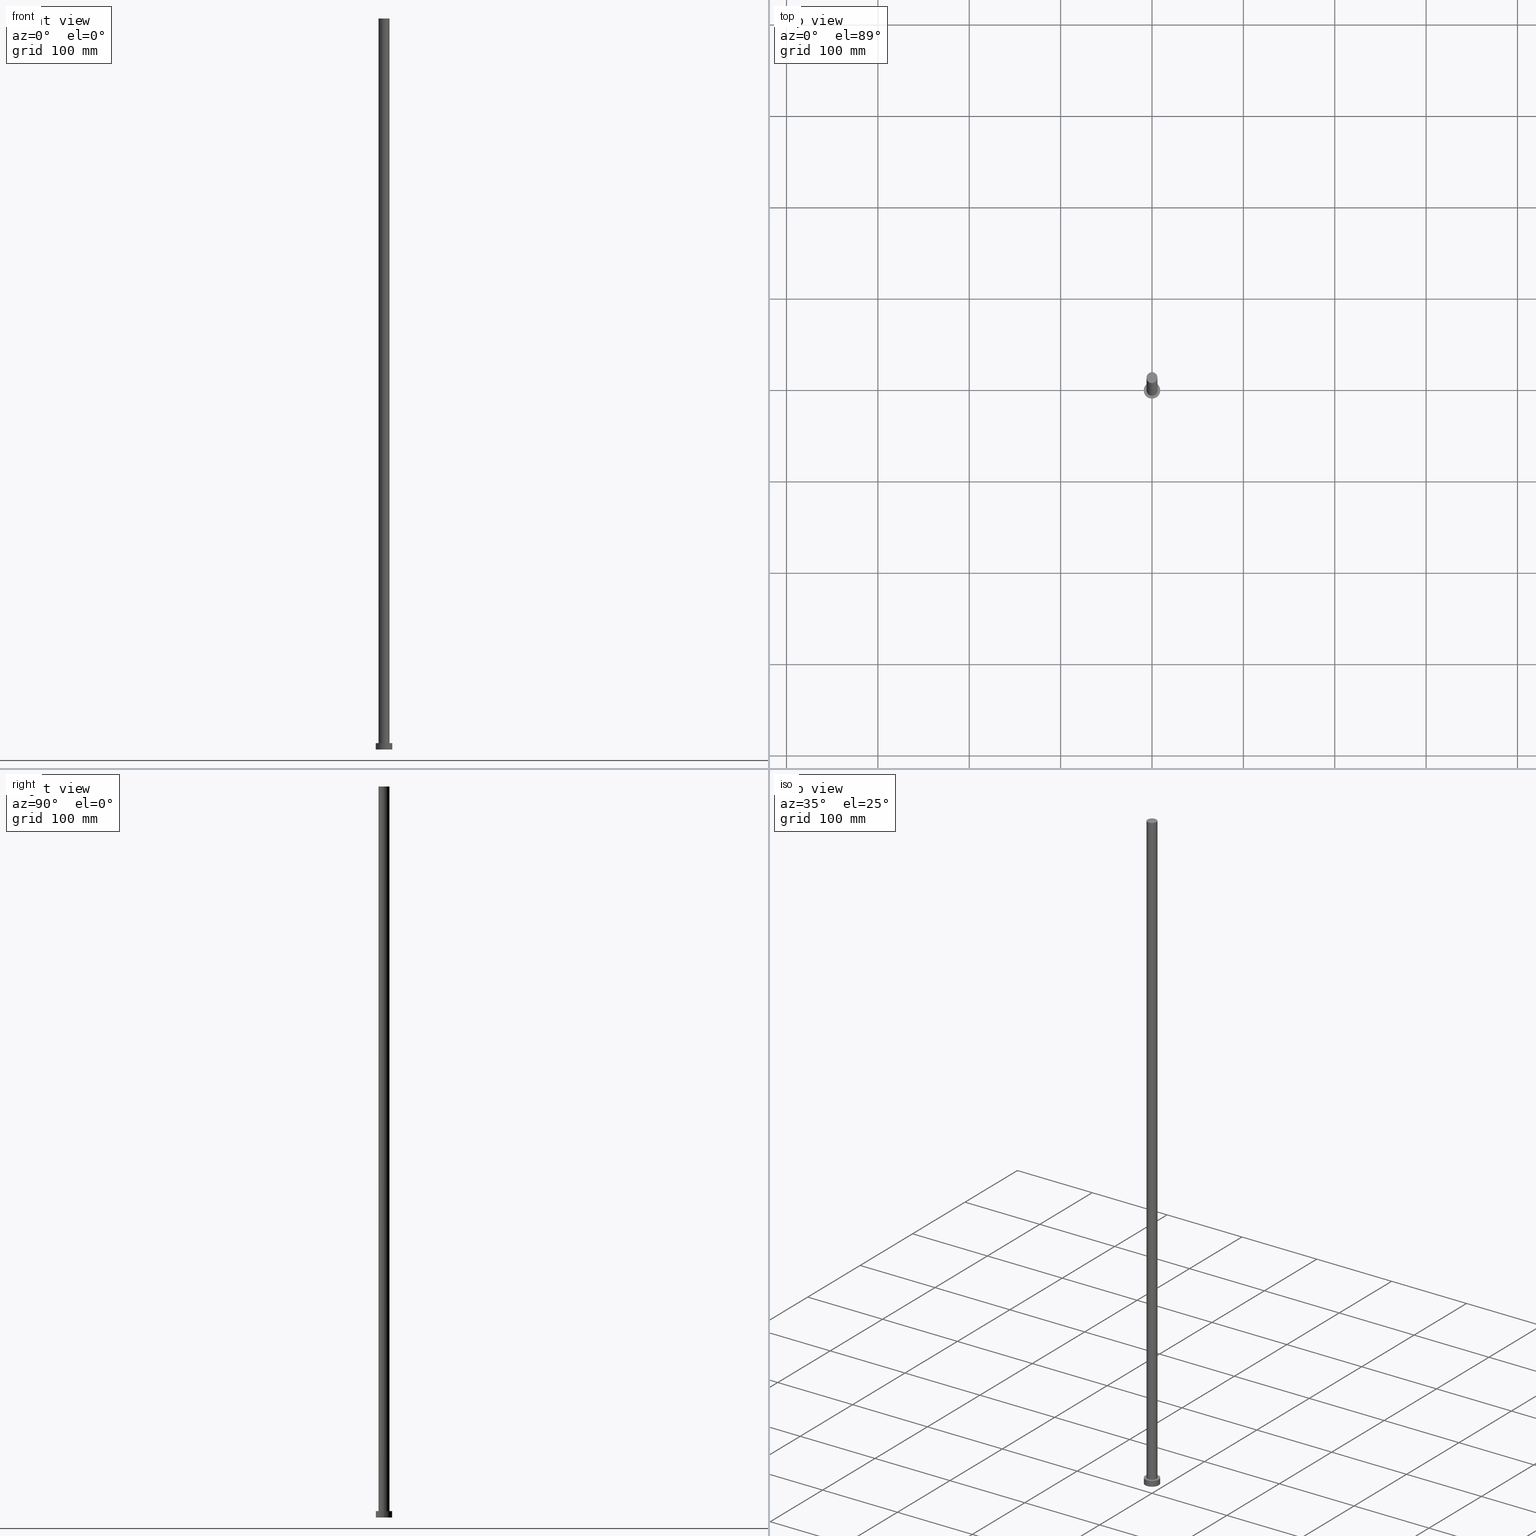
[diagram: canonical four-view strip — front | top / right | iso, engineering-drawing reading convention]
A machine part, canonical four-view strip (front | top / right | iso — engineering-drawing reading convention). The complete STEP part file that produces these views, byte-faithful:
ISO-10303-21;
HEADER;
FILE_DESCRIPTION (( 'STEP AP203' ),
    '1' );
FILE_NAME ('87c6.STEP',
    '2026-02-06T12:36:55',
    ( '' ),
    ( '' ),
    'SwSTEP 2.0',
    'SolidWorks 2019',
    '' );
FILE_SCHEMA (( 'CONFIG_CONTROL_DESIGN' ));
ENDSEC;

DATA;
#1 = EDGE_CURVE ( 'NONE', #83, #47, #236, .T. ) ;
#2 = AXIS2_PLACEMENT_3D ( 'NONE', #19, #146, #206 ) ;
#3 = CARTESIAN_POINT ( 'NONE',  ( 0.000000000000000000, 0.000000000000000000, 0.000000000000000000 ) ) ;
#4 = APPLICATION_PROTOCOL_DEFINITION ( 'international standard', 'config_control_design', 1994, #253 ) ;
#5 = ADVANCED_FACE ( 'NONE', ( #30, #10 ), #183, .T. ) ;
#6 = VECTOR ( 'NONE', #247, 1000.000000000000000 ) ;
#7 = DIRECTION ( 'NONE',  ( -0.000000000000000000, -0.000000000000000000, -1.000000000000000000 ) ) ;
#8 = LOCAL_TIME ( 13, 36, 55.00000000000000000, #89 ) ;
#9 = EDGE_CURVE ( 'NONE', #101, #223, #202, .T. ) ;
#10 = FACE_OUTER_BOUND ( 'NONE', #220, .T. ) ;
#11 = ORIENTED_EDGE ( 'NONE', *, *, #9, .T. ) ;
#12 = AXIS2_PLACEMENT_3D ( 'NONE', #3, #156, #161 ) ;
#13 = DIRECTION ( 'NONE',  ( 1.000000000000000000, 0.000000000000000000, -0.000000000000000000 ) ) ;
#14 = DIRECTION ( 'NONE',  ( 0.000000000000000000, 0.000000000000000000, 1.000000000000000000 ) ) ;
#15 = PERSON ( 'NEUR�EN�', 'NEUR�EN�', 'NEUR�EN�', ('NEUR�EN�'), ('NEUR�EN�'), ('NEUR�EN�') ) ;
#16 = CARTESIAN_POINT ( 'NONE',  ( 0.000000000000000000, 0.000000000000000000, 800.0000000000000000 ) ) ;
#17 = CIRCLE ( 'NONE', #225, 9.000000000000000000 ) ;
#18 = CC_DESIGN_APPROVAL ( #237, ( #157 ) ) ;
#19 = CARTESIAN_POINT ( 'NONE',  ( 0.000000000000000000, 0.000000000000000000, 7.000000000000000000 ) ) ;
#20 = DIRECTION ( 'NONE',  ( -0.000000000000000000, -0.000000000000000000, -1.000000000000000000 ) ) ;
#21 = CARTESIAN_POINT ( 'NONE',  ( 0.000000000000000000, 0.000000000000000000, 0.000000000000000000 ) ) ;
#22 = AXIS2_PLACEMENT_3D ( 'NONE', #21, #229, #86 ) ;
#23 = LOCAL_TIME ( 13, 36, 55.00000000000000000, #178 ) ;
#24 = MANIFOLD_SOLID_BREP ( 'P�idat vysunut�m3', #123 ) ;
#25 = MECHANICAL_CONTEXT ( 'NONE', #253, 'mechanical' ) ;
#26 = ORIENTED_EDGE ( 'NONE', *, *, #27, .F. ) ;
#27 = EDGE_CURVE ( 'NONE', #47, #83, #177, .T. ) ;
#28 = CARTESIAN_POINT ( 'NONE',  ( 0.000000000000000000, 0.000000000000000000, 7.000000000000000000 ) ) ;
#29 = APPROVAL_DATE_TIME ( #218, #158 ) ;
#30 = FACE_BOUND ( 'NONE', #31, .T. ) ;
#31 = EDGE_LOOP ( 'NONE', ( #238, #26 ) ) ;
#32 = APPROVAL_PERSON_ORGANIZATION ( #98, #158, #200 ) ;
#33 = CARTESIAN_POINT ( 'NONE',  ( 6.000000000000000888, 7.347880794884120722E-16, 7.000000000000000000 ) ) ;
#34 = EDGE_CURVE ( 'NONE', #67, #203, #144, .T. ) ;
#35 = CARTESIAN_POINT ( 'NONE',  ( -6.000000000000000888, 0.000000000000000000, 800.0000000000000000 ) ) ;
#36 = CARTESIAN_POINT ( 'NONE',  ( 0.000000000000000000, 0.000000000000000000, 800.0000000000000000 ) ) ;
#37 = SECURITY_CLASSIFICATION_LEVEL ( 'unclassified' ) ;
#38 = ADVANCED_FACE ( 'NONE', ( #109 ), #107, .T. ) ;
#39 = DIRECTION ( 'NONE',  ( -0.000000000000000000, -0.000000000000000000, -1.000000000000000000 ) ) ;
#40 = CARTESIAN_POINT ( 'NONE',  ( 0.000000000000000000, 0.000000000000000000, 800.0000000000000000 ) ) ;
#41 = VECTOR ( 'NONE', #20, 1000.000000000000000 ) ;
#42 =( NAMED_UNIT ( * ) PLANE_ANGLE_UNIT ( ) SI_UNIT ( $, .RADIAN. ) );
#43 = CYLINDRICAL_SURFACE ( 'NONE', #136, 9.000000000000000000 ) ;
#44 = DIRECTION ( 'NONE',  ( 1.000000000000000000, 0.000000000000000000, -0.000000000000000000 ) ) ;
#45 = EDGE_CURVE ( 'NONE', #223, #101, #135, .T. ) ;
#46 = AXIS2_PLACEMENT_3D ( 'NONE', #40, #112, #137 ) ;
#47 = VERTEX_POINT ( 'NONE', #33 ) ;
#48 = DESIGN_CONTEXT ( 'detailed design', #87, 'design' ) ;
#49 = CARTESIAN_POINT ( 'NONE',  ( 0.000000000000000000, 0.000000000000000000, 7.000000000000000000 ) ) ;
#50 = ORIENTED_EDGE ( 'NONE', *, *, #45, .F. ) ;
#51 =( NAMED_UNIT ( * ) SI_UNIT ( $, .STERADIAN. ) SOLID_ANGLE_UNIT ( ) );
#52 = ADVANCED_FACE ( 'NONE', ( #186 ), #188, .T. ) ;
#53 = VECTOR ( 'NONE', #195, 1000.000000000000000 ) ;
#54 = DIRECTION ( 'NONE',  ( 0.000000000000000000, 0.000000000000000000, 1.000000000000000000 ) ) ;
#55 = DIRECTION ( 'NONE',  ( 1.000000000000000000, 0.000000000000000000, 0.000000000000000000 ) ) ;
#56 = CC_DESIGN_PERSON_AND_ORGANIZATION_ASSIGNMENT ( #250, #209, ( #95 ) ) ;
#57 = CARTESIAN_POINT ( 'NONE',  ( 6.000000000000000888, 7.347880794884120722E-16, 800.0000000000000000 ) ) ;
#58 = APPROVAL_DATE_TIME ( #230, #140 ) ;
#59 = CARTESIAN_POINT ( 'NONE',  ( 0.000000000000000000, 0.000000000000000000, 7.000000000000000000 ) ) ;
#60 = CIRCLE ( 'NONE', #192, 6.000000000000000888 ) ;
#61 = ORIENTED_EDGE ( 'NONE', *, *, #77, .T. ) ;
#62 = CARTESIAN_POINT ( 'NONE',  ( 0.000000000000000000, 0.000000000000000000, 7.000000000000000000 ) ) ;
#63 = PERSON_AND_ORGANIZATION_ROLE ( 'design_owner' ) ;
#64 = APPROVAL_STATUS ( 'not_yet_approved' ) ;
#65 = LOCAL_TIME ( 13, 36, 55.00000000000000000, #197 ) ;
#66 = CALENDAR_DATE ( 2026, 6, 2 ) ;
#67 = VERTEX_POINT ( 'NONE', #165 ) ;
#68 = ORIENTED_EDGE ( 'NONE', *, *, #77, .F. ) ;
#69 = DIRECTION ( 'NONE',  ( 0.000000000000000000, 0.000000000000000000, 1.000000000000000000 ) ) ;
#70 = EDGE_LOOP ( 'NONE', ( #239, #68, #219, #160 ) ) ;
#71 = AXIS2_PLACEMENT_3D ( 'NONE', #36, #54, #74 ) ;
#72 = CARTESIAN_POINT ( 'NONE',  ( 0.000000000000000000, 0.000000000000000000, 800.0000000000000000 ) ) ;
#73 = CARTESIAN_POINT ( 'NONE',  ( -9.000000000000000000, 0.000000000000000000, 7.000000000000000000 ) ) ;
#74 = DIRECTION ( 'NONE',  ( 1.000000000000000000, 0.000000000000000000, -0.000000000000000000 ) ) ;
#75 = DIRECTION ( 'NONE',  ( 1.000000000000000000, 0.000000000000000000, 0.000000000000000000 ) ) ;
#76 = APPROVAL_STATUS ( 'not_yet_approved' ) ;
#77 = EDGE_CURVE ( 'NONE', #203, #67, #60, .T. ) ;
#78 = PERSON_AND_ORGANIZATION ( #15, #152 ) ;
#79 = EDGE_CURVE ( 'NONE', #138, #145, #216, .T. ) ;
#80 = CALENDAR_DATE ( 2026, 6, 2 ) ;
#81 = CARTESIAN_POINT ( 'NONE',  ( 9.000000000000000000, 1.102182119232617714E-15, 0.000000000000000000 ) ) ;
#82 = ADVANCED_FACE ( 'NONE', ( #111 ), #226, .T. ) ;
#83 = VERTEX_POINT ( 'NONE', #127 ) ;
#84 = CARTESIAN_POINT ( 'NONE',  ( -9.000000000000000000, 0.000000000000000000, 7.000000000000000000 ) ) ;
#85 = ORIENTED_EDGE ( 'NONE', *, *, #201, .T. ) ;
#86 = DIRECTION ( 'NONE',  ( 1.000000000000000000, 0.000000000000000000, 0.000000000000000000 ) ) ;
#87 = APPLICATION_CONTEXT ( 'configuration controlled 3d designs of mechanical parts and assemblies' ) ;
#88 = DIRECTION ( 'NONE',  ( -1.000000000000000000, 0.000000000000000000, 0.000000000000000000 ) ) ;
#89 = COORDINATED_UNIVERSAL_TIME_OFFSET ( 1, 0, .AHEAD. ) ;
#90 = DIRECTION ( 'NONE',  ( 0.000000000000000000, 0.000000000000000000, 1.000000000000000000 ) ) ;
#91 = CARTESIAN_POINT ( 'NONE',  ( -6.000000000000000888, 0.000000000000000000, 800.0000000000000000 ) ) ;
#92 = AXIS2_PLACEMENT_3D ( 'NONE', #59, #227, #88 ) ;
#93 = ADVANCED_BREP_SHAPE_REPRESENTATION ( '87c6', ( #24, #12 ), #182 ) ;
#94 = EDGE_CURVE ( 'NONE', #145, #138, #17, .T. ) ;
#95 = PRODUCT_DEFINITION_FORMATION_WITH_SPECIFIED_SOURCE ( 'LIBOVOLN�', '', #133, .NOT_KNOWN. ) ;
#96 = CC_DESIGN_PERSON_AND_ORGANIZATION_ASSIGNMENT ( #254, #246, ( #95 ) ) ;
#97 = PLANE ( 'NONE',  #205 ) ;
#98 = PERSON_AND_ORGANIZATION ( #15, #152 ) ;
#99 = PERSON_AND_ORGANIZATION ( #15, #152 ) ;
#100 = VECTOR ( 'NONE', #39, 1000.000000000000000 ) ;
#101 = VERTEX_POINT ( 'NONE', #189 ) ;
#102 = EDGE_LOOP ( 'NONE', ( #142, #50 ) ) ;
#103 = PERSON_AND_ORGANIZATION ( #15, #152 ) ;
#104 = DIRECTION ( 'NONE',  ( 0.000000000000000000, 0.000000000000000000, 1.000000000000000000 ) ) ;
#105 = ORIENTED_EDGE ( 'NONE', *, *, #34, .F. ) ;
#106 = CARTESIAN_POINT ( 'NONE',  ( 0.000000000000000000, 0.000000000000000000, 0.000000000000000000 ) ) ;
#107 = CYLINDRICAL_SURFACE ( 'NONE', #92, 9.000000000000000000 ) ;
#108 = AXIS2_PLACEMENT_3D ( 'NONE', #190, #151, #185 ) ;
#109 = FACE_OUTER_BOUND ( 'NONE', #124, .T. ) ;
#110 = SHAPE_DEFINITION_REPRESENTATION ( #255, #93 ) ;
#111 = FACE_OUTER_BOUND ( 'NONE', #70, .T. ) ;
#112 = DIRECTION ( 'NONE',  ( -0.000000000000000000, -0.000000000000000000, -1.000000000000000000 ) ) ;
#113 = UNCERTAINTY_MEASURE_WITH_UNIT (LENGTH_MEASURE( 1.000000000000000082E-05 ), #233, 'distance_accuracy_value', 'NONE');
#114 = AXIS2_PLACEMENT_3D ( 'NONE', #16, #212, #168 ) ;
#115 = DATE_TIME_ROLE ( 'classification_date' ) ;
#116 = LOCAL_TIME ( 13, 36, 55.00000000000000000, #172 ) ;
#117 = CC_DESIGN_PERSON_AND_ORGANIZATION_ASSIGNMENT ( #232, #63, ( #133 ) ) ;
#118 = LINE ( 'NONE', #84, #53 ) ;
#119 = CARTESIAN_POINT ( 'NONE',  ( 0.000000000000000000, 0.000000000000000000, 0.000000000000000000 ) ) ;
#120 = CC_DESIGN_DATE_AND_TIME_ASSIGNMENT ( #176, #115, ( #157 ) ) ;
#121 = ORIENTED_EDGE ( 'NONE', *, *, #45, .T. ) ;
#122 = DIRECTION ( 'NONE',  ( 0.000000000000000000, 0.000000000000000000, 1.000000000000000000 ) ) ;
#123 = CLOSED_SHELL ( 'NONE', ( #207, #215, #38, #5, #252, #82, #52 ) ) ;
#124 = EDGE_LOOP ( 'NONE', ( #204, #224, #162, #11 ) ) ;
#125 = CC_DESIGN_APPROVAL ( #140, ( #95 ) ) ;
#126 = LINE ( 'NONE', #35, #6 ) ;
#127 = CARTESIAN_POINT ( 'NONE',  ( -6.000000000000000888, 0.000000000000000000, 7.000000000000000000 ) ) ;
#128 = AXIS2_PLACEMENT_3D ( 'NONE', #106, #129, #131 ) ;
#129 = DIRECTION ( 'NONE',  ( 0.000000000000000000, 0.000000000000000000, 1.000000000000000000 ) ) ;
#130 = EDGE_CURVE ( 'NONE', #203, #83, #126, .T. ) ;
#131 = DIRECTION ( 'NONE',  ( 1.000000000000000000, 0.000000000000000000, 0.000000000000000000 ) ) ;
#132 = PERSON_AND_ORGANIZATION_ROLE ( 'classification_officer' ) ;
#133 = PRODUCT ( '87c6', '87c6', '', ( #25 ) ) ;
#134 = DIRECTION ( 'NONE',  ( -1.000000000000000000, 0.000000000000000000, 0.000000000000000000 ) ) ;
#135 = CIRCLE ( 'NONE', #22, 9.000000000000000000 ) ;
#136 = AXIS2_PLACEMENT_3D ( 'NONE', #62, #7, #134 ) ;
#137 = DIRECTION ( 'NONE',  ( -1.000000000000000000, 0.000000000000000000, 0.000000000000000000 ) ) ;
#138 = VERTEX_POINT ( 'NONE', #73 ) ;
#139 = DATE_AND_TIME ( #66, #65 ) ;
#140 = APPROVAL ( #191, 'NEUR�EN�' ) ;
#141 = ORIENTED_EDGE ( 'NONE', *, *, #94, .T. ) ;
#142 = ORIENTED_EDGE ( 'NONE', *, *, #9, .F. ) ;
#143 = EDGE_LOOP ( 'NONE', ( #105, #85, #184, #154 ) ) ;
#144 = CIRCLE ( 'NONE', #251, 6.000000000000000888 ) ;
#145 = VERTEX_POINT ( 'NONE', #147 ) ;
#146 = DIRECTION ( 'NONE',  ( 0.000000000000000000, 0.000000000000000000, 1.000000000000000000 ) ) ;
#147 = CARTESIAN_POINT ( 'NONE',  ( 9.000000000000000000, 1.102182119232617714E-15, 7.000000000000000000 ) ) ;
#148 = APPROVAL_DATE_TIME ( #211, #237 ) ;
#149 = LINE ( 'NONE', #208, #41 ) ;
#150 = APPROVAL_PERSON_ORGANIZATION ( #174, #237, #213 ) ;
#151 = DIRECTION ( 'NONE',  ( 0.000000000000000000, 0.000000000000000000, 1.000000000000000000 ) ) ;
#152 = ORGANIZATION ( 'NEUR�EN�', 'NEUR�EN�', '' ) ;
#153 = CALENDAR_DATE ( 2026, 6, 2 ) ;
#154 = ORIENTED_EDGE ( 'NONE', *, *, #130, .F. ) ;
#155 = PRODUCT_DEFINITION ( 'NEZN�M�', '', #95, #48 ) ;
#156 = DIRECTION ( 'NONE',  ( 0.000000000000000000, 0.000000000000000000, 1.000000000000000000 ) ) ;
#157 = SECURITY_CLASSIFICATION ( '', '', #37 ) ;
#158 = APPROVAL ( #64, 'NEUR�EN�' ) ;
#159 = CC_DESIGN_SECURITY_CLASSIFICATION ( #157, ( #95 ) ) ;
#160 = ORIENTED_EDGE ( 'NONE', *, *, #1, .T. ) ;
#161 = DIRECTION ( 'NONE',  ( 1.000000000000000000, 0.000000000000000000, 0.000000000000000000 ) ) ;
#162 = ORIENTED_EDGE ( 'NONE', *, *, #221, .T. ) ;
#163 = ORIENTED_EDGE ( 'NONE', *, *, #34, .T. ) ;
#164 = EDGE_CURVE ( 'NONE', #145, #223, #149, .T. ) ;
#165 = CARTESIAN_POINT ( 'NONE',  ( 6.000000000000000888, 7.347880794884120722E-16, 800.0000000000000000 ) ) ;
#166 = CARTESIAN_POINT ( 'NONE',  ( 0.000000000000000000, 0.000000000000000000, 7.000000000000000000 ) ) ;
#167 = CALENDAR_DATE ( 2026, 6, 2 ) ;
#168 = DIRECTION ( 'NONE',  ( -1.000000000000000000, 0.000000000000000000, 0.000000000000000000 ) ) ;
#169 = APPROVAL_ROLE ( '' ) ;
#170 = CC_DESIGN_PERSON_AND_ORGANIZATION_ASSIGNMENT ( #78, #132, ( #157 ) ) ;
#171 = FACE_OUTER_BOUND ( 'NONE', #143, .T. ) ;
#172 = COORDINATED_UNIVERSAL_TIME_OFFSET ( 1, 0, .AHEAD. ) ;
#173 = AXIS2_PLACEMENT_3D ( 'NONE', #49, #104, #13 ) ;
#174 = PERSON_AND_ORGANIZATION ( #15, #152 ) ;
#175 = CC_DESIGN_APPROVAL ( #158, ( #155 ) ) ;
#176 = DATE_AND_TIME ( #248, #193 ) ;
#177 = CIRCLE ( 'NONE', #108, 6.000000000000000888 ) ;
#178 = COORDINATED_UNIVERSAL_TIME_OFFSET ( 1, 0, .AHEAD. ) ;
#179 = ORIENTED_EDGE ( 'NONE', *, *, #164, .T. ) ;
#180 = DIRECTION ( 'NONE',  ( 1.000000000000000000, 0.000000000000000000, 0.000000000000000000 ) ) ;
#181 = FACE_OUTER_BOUND ( 'NONE', #242, .T. ) ;
#182 =( GEOMETRIC_REPRESENTATION_CONTEXT ( 3 ) GLOBAL_UNCERTAINTY_ASSIGNED_CONTEXT ( ( #113 ) ) GLOBAL_UNIT_ASSIGNED_CONTEXT ( ( #233, #42, #51 ) ) REPRESENTATION_CONTEXT ( 'NONE', 'WORKASPACE' ) );
#183 = PLANE ( 'NONE',  #173 ) ;
#184 = ORIENTED_EDGE ( 'NONE', *, *, #27, .T. ) ;
#185 = DIRECTION ( 'NONE',  ( 1.000000000000000000, 0.000000000000000000, 0.000000000000000000 ) ) ;
#186 = FACE_OUTER_BOUND ( 'NONE', #240, .T. ) ;
#187 = CC_DESIGN_DATE_AND_TIME_ASSIGNMENT ( #139, #222, ( #155 ) ) ;
#188 = PLANE ( 'NONE',  #71 ) ;
#189 = CARTESIAN_POINT ( 'NONE',  ( -9.000000000000000000, 0.000000000000000000, 0.000000000000000000 ) ) ;
#190 = CARTESIAN_POINT ( 'NONE',  ( 0.000000000000000000, 0.000000000000000000, 7.000000000000000000 ) ) ;
#191 = APPROVAL_STATUS ( 'not_yet_approved' ) ;
#192 = AXIS2_PLACEMENT_3D ( 'NONE', #244, #90, #55 ) ;
#193 = LOCAL_TIME ( 13, 36, 55.00000000000000000, #214 ) ;
#194 = PRODUCT_RELATED_PRODUCT_CATEGORY ( 'detail', '', ( #133 ) ) ;
#195 = DIRECTION ( 'NONE',  ( -0.000000000000000000, -0.000000000000000000, -1.000000000000000000 ) ) ;
#196 = APPLICATION_PROTOCOL_DEFINITION ( 'international standard', 'config_control_design', 1994, #87 ) ;
#197 = COORDINATED_UNIVERSAL_TIME_OFFSET ( 1, 0, .AHEAD. ) ;
#198 = ORIENTED_EDGE ( 'NONE', *, *, #221, .F. ) ;
#199 = ORIENTED_EDGE ( 'NONE', *, *, #94, .F. ) ;
#200 = APPROVAL_ROLE ( '' ) ;
#201 = EDGE_CURVE ( 'NONE', #67, #47, #210, .T. ) ;
#202 = CIRCLE ( 'NONE', #128, 9.000000000000000000 ) ;
#203 = VERTEX_POINT ( 'NONE', #91 ) ;
#204 = ORIENTED_EDGE ( 'NONE', *, *, #164, .F. ) ;
#205 = AXIS2_PLACEMENT_3D ( 'NONE', #119, #69, #44 ) ;
#206 = DIRECTION ( 'NONE',  ( 1.000000000000000000, 0.000000000000000000, 0.000000000000000000 ) ) ;
#207 = ADVANCED_FACE ( 'NONE', ( #171 ), #249, .T. ) ;
#208 = CARTESIAN_POINT ( 'NONE',  ( 9.000000000000000000, 1.102182119232617714E-15, 7.000000000000000000 ) ) ;
#209 = PERSON_AND_ORGANIZATION_ROLE ( 'design_supplier' ) ;
#210 = LINE ( 'NONE', #57, #100 ) ;
#211 = DATE_AND_TIME ( #167, #8 ) ;
#212 = DIRECTION ( 'NONE',  ( -0.000000000000000000, -0.000000000000000000, -1.000000000000000000 ) ) ;
#213 = APPROVAL_ROLE ( '' ) ;
#214 = COORDINATED_UNIVERSAL_TIME_OFFSET ( 1, 0, .AHEAD. ) ;
#215 = ADVANCED_FACE ( 'NONE', ( #181 ), #43, .T. ) ;
#216 = CIRCLE ( 'NONE', #2, 9.000000000000000000 ) ;
#217 = AXIS2_PLACEMENT_3D ( 'NONE', #28, #122, #180 ) ;
#218 = DATE_AND_TIME ( #80, #23 ) ;
#219 = ORIENTED_EDGE ( 'NONE', *, *, #130, .T. ) ;
#220 = EDGE_LOOP ( 'NONE', ( #243, #141 ) ) ;
#221 = EDGE_CURVE ( 'NONE', #138, #101, #118, .T. ) ;
#222 = DATE_TIME_ROLE ( 'creation_date' ) ;
#223 = VERTEX_POINT ( 'NONE', #81 ) ;
#224 = ORIENTED_EDGE ( 'NONE', *, *, #79, .F. ) ;
#225 = AXIS2_PLACEMENT_3D ( 'NONE', #166, #245, #75 ) ;
#226 = CYLINDRICAL_SURFACE ( 'NONE', #114, 6.000000000000000888 ) ;
#227 = DIRECTION ( 'NONE',  ( -0.000000000000000000, -0.000000000000000000, -1.000000000000000000 ) ) ;
#228 = DIRECTION ( 'NONE',  ( 1.000000000000000000, 0.000000000000000000, 0.000000000000000000 ) ) ;
#229 = DIRECTION ( 'NONE',  ( 0.000000000000000000, 0.000000000000000000, 1.000000000000000000 ) ) ;
#230 = DATE_AND_TIME ( #153, #116 ) ;
#231 = CC_DESIGN_PERSON_AND_ORGANIZATION_ASSIGNMENT ( #99, #235, ( #155 ) ) ;
#232 = PERSON_AND_ORGANIZATION ( #15, #152 ) ;
#233 =( LENGTH_UNIT ( ) NAMED_UNIT ( * ) SI_UNIT ( .MILLI., .METRE. ) );
#234 = APPROVAL_PERSON_ORGANIZATION ( #103, #140, #169 ) ;
#235 = PERSON_AND_ORGANIZATION_ROLE ( 'creator' ) ;
#236 = CIRCLE ( 'NONE', #217, 6.000000000000000888 ) ;
#237 = APPROVAL ( #76, 'NEUR�EN�' ) ;
#238 = ORIENTED_EDGE ( 'NONE', *, *, #1, .F. ) ;
#239 = ORIENTED_EDGE ( 'NONE', *, *, #201, .F. ) ;
#240 = EDGE_LOOP ( 'NONE', ( #61, #163 ) ) ;
#241 = FACE_OUTER_BOUND ( 'NONE', #102, .T. ) ;
#242 = EDGE_LOOP ( 'NONE', ( #199, #179, #121, #198 ) ) ;
#243 = ORIENTED_EDGE ( 'NONE', *, *, #79, .T. ) ;
#244 = CARTESIAN_POINT ( 'NONE',  ( 0.000000000000000000, 0.000000000000000000, 800.0000000000000000 ) ) ;
#245 = DIRECTION ( 'NONE',  ( 0.000000000000000000, 0.000000000000000000, 1.000000000000000000 ) ) ;
#246 = PERSON_AND_ORGANIZATION_ROLE ( 'creator' ) ;
#247 = DIRECTION ( 'NONE',  ( -0.000000000000000000, -0.000000000000000000, -1.000000000000000000 ) ) ;
#248 = CALENDAR_DATE ( 2026, 6, 2 ) ;
#249 = CYLINDRICAL_SURFACE ( 'NONE', #46, 6.000000000000000888 ) ;
#250 = PERSON_AND_ORGANIZATION ( #15, #152 ) ;
#251 = AXIS2_PLACEMENT_3D ( 'NONE', #72, #14, #228 ) ;
#252 = ADVANCED_FACE ( 'NONE', ( #241 ), #97, .F. ) ;
#253 = APPLICATION_CONTEXT ( 'configuration controlled 3d designs of mechanical parts and assemblies' ) ;
#254 = PERSON_AND_ORGANIZATION ( #15, #152 ) ;
#255 = PRODUCT_DEFINITION_SHAPE ( 'NONE', 'NONE',  #155 ) ;
ENDSEC;
END-ISO-10303-21;
